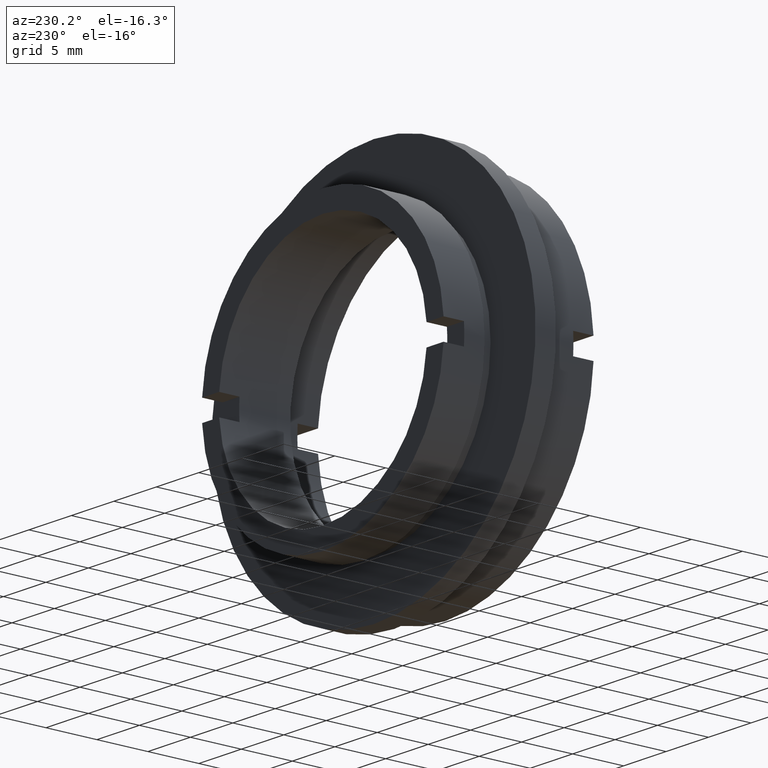
[diagram: clean part render]
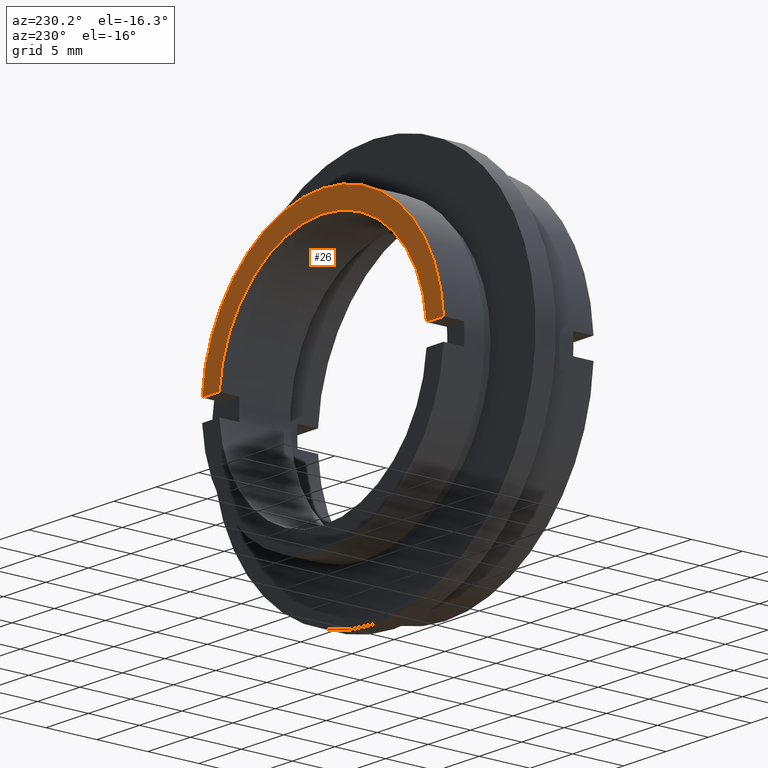
[diagram: same view with one face highlighted and labeled with its STEP entity id]
A machine part, auxiliary view. The second image highlights one B-rep face of the part: STEP entity #26.
In plain terms, the highlighted planar face has unit normal (-0, 1, 0).
Its self-contained STEP definition (entity closure, byte-faithful):
#26 = ADVANCED_FACE ( 'NONE', ( #1232 ), #1334, .T. ) ;
#49 = ORIENTED_EDGE ( 'NONE', *, *, #1216, .F. ) ;
#61 = CARTESIAN_POINT ( 'NONE',  ( 0.0000000000000000000, 12.00000000000000000, 0.0000000000000000000 ) ) ;
#62 = VECTOR ( 'NONE', #284, 1000.000000000000000 ) ;
#65 = LINE ( 'NONE', #1159, #62 ) ;
#67 = DIRECTION ( 'NONE',  ( -0.0000000000000000000, 1.000000000000000000, -0.0000000000000000000 ) ) ;
#74 = DIRECTION ( 'NONE',  ( 0.0000000000000000000, 0.0000000000000000000, 1.000000000000000000 ) ) ;
#96 = CIRCLE ( 'NONE', #985, 12.24999999999999800 ) ;
#106 = VECTOR ( 'NONE', #1008, 1000.000000000000000 ) ;
#165 = CARTESIAN_POINT ( 'NONE',  ( 0.0000000000000000000, 12.00000000000000000, 0.0000000000000000000 ) ) ;
#166 = DIRECTION ( 'NONE',  ( 0.0000000000000000000, 0.0000000000000000000, 1.000000000000000000 ) ) ;
#209 = LINE ( 'NONE', #1074, #106 ) ;
#232 = CARTESIAN_POINT ( 'NONE',  ( -12.20911544707477800, 12.00000000000000000, 1.000000000000001600 ) ) ;
#236 = CARTESIAN_POINT ( 'NONE',  ( 0.0000000000000000000, 12.00000000000000000, 0.0000000000000000000 ) ) ;
#239 = EDGE_CURVE ( 'NONE', #860, #384, #895, .T. ) ;
#262 = ORIENTED_EDGE ( 'NONE', *, *, #287, .T. ) ;
#284 = DIRECTION ( 'NONE',  ( 1.000000000000000000, 0.0000000000000000000, 0.0000000000000000000 ) ) ;
#287 = EDGE_CURVE ( 'NONE', #384, #1220, #1227, .T. ) ;
#335 = VERTEX_POINT ( 'NONE', #232 ) ;
#379 = ORIENTED_EDGE ( 'NONE', *, *, #851, .F. ) ;
#384 = VERTEX_POINT ( 'NONE', #1069 ) ;
#454 = CARTESIAN_POINT ( 'NONE',  ( 0.0000000000000000000, 12.00000000000000000, 12.24999999999999800 ) ) ;
#504 = AXIS2_PLACEMENT_3D ( 'NONE', #1294, #1097, #849 ) ;
#512 = DIRECTION ( 'NONE',  ( -0.0000000000000000000, 1.000000000000000000, -0.0000000000000000000 ) ) ;
#551 = CARTESIAN_POINT ( 'NONE',  ( 12.20911544707477800, 12.00000000000000000, 1.000000000000001600 ) ) ;
#582 = CARTESIAN_POINT ( 'NONE',  ( -14.21486897582949800, 12.00000000000000000, 1.000000000000001600 ) ) ;
#587 = ORIENTED_EDGE ( 'NONE', *, *, #758, .F. ) ;
#662 = DIRECTION ( 'NONE',  ( 0.0000000000000000000, 0.0000000000000000000, 1.000000000000000000 ) ) ;
#683 = AXIS2_PLACEMENT_3D ( 'NONE', #1277, #1309, #1151 ) ;
#758 = EDGE_CURVE ( 'NONE', #335, #814, #96, .T. ) ;
#798 = EDGE_LOOP ( 'NONE', ( #379, #876, #262, #49, #912, #587 ) ) ;
#814 = VERTEX_POINT ( 'NONE', #454 ) ;
#839 = AXIS2_PLACEMENT_3D ( 'NONE', #236, #512, #166 ) ;
#849 = DIRECTION ( 'NONE',  ( 0.0000000000000000000, 0.0000000000000000000, 1.000000000000000000 ) ) ;
#851 = EDGE_CURVE ( 'NONE', #860, #335, #65, .T. ) ;
#858 = EDGE_CURVE ( 'NONE', #814, #930, #1157, .T. ) ;
#860 = VERTEX_POINT ( 'NONE', #582 ) ;
#876 = ORIENTED_EDGE ( 'NONE', *, *, #239, .T. ) ;
#895 = CIRCLE ( 'NONE', #839, 14.24999999999999800 ) ;
#912 = ORIENTED_EDGE ( 'NONE', *, *, #858, .F. ) ;
#930 = VERTEX_POINT ( 'NONE', #551 ) ;
#985 = AXIS2_PLACEMENT_3D ( 'NONE', #61, #67, #74 ) ;
#996 = DIRECTION ( 'NONE',  ( -0.0000000000000000000, 1.000000000000000000, -0.0000000000000000000 ) ) ;
#1008 = DIRECTION ( 'NONE',  ( 1.000000000000000000, 0.0000000000000000000, 0.0000000000000000000 ) ) ;
#1032 = CARTESIAN_POINT ( 'NONE',  ( 14.21486897582949800, 12.00000000000000000, 1.000000000000001600 ) ) ;
#1069 = CARTESIAN_POINT ( 'NONE',  ( 0.0000000000000000000, 12.00000000000000000, 14.24999999999999800 ) ) ;
#1074 = CARTESIAN_POINT ( 'NONE',  ( -12.24999999999999800, 12.00000000000000000, 1.000000000000001600 ) ) ;
#1097 = DIRECTION ( 'NONE',  ( -0.0000000000000000000, 1.000000000000000000, 0.0000000000000000000 ) ) ;
#1151 = DIRECTION ( 'NONE',  ( 0.0000000000000000000, 0.0000000000000000000, 1.000000000000000000 ) ) ;
#1157 = CIRCLE ( 'NONE', #1188, 12.24999999999999800 ) ;
#1159 = CARTESIAN_POINT ( 'NONE',  ( -12.24999999999999800, 12.00000000000000000, 1.000000000000001600 ) ) ;
#1188 = AXIS2_PLACEMENT_3D ( 'NONE', #165, #996, #662 ) ;
#1216 = EDGE_CURVE ( 'NONE', #930, #1220, #209, .T. ) ;
#1220 = VERTEX_POINT ( 'NONE', #1032 ) ;
#1227 = CIRCLE ( 'NONE', #683, 14.24999999999999800 ) ;
#1232 = FACE_OUTER_BOUND ( 'NONE', #798, .T. ) ;
#1277 = CARTESIAN_POINT ( 'NONE',  ( 0.0000000000000000000, 12.00000000000000000, 0.0000000000000000000 ) ) ;
#1294 = CARTESIAN_POINT ( 'NONE',  ( -12.24999999999999800, 12.00000000000000000, 0.0000000000000000000 ) ) ;
#1309 = DIRECTION ( 'NONE',  ( -0.0000000000000000000, 1.000000000000000000, -0.0000000000000000000 ) ) ;
#1334 = PLANE ( 'NONE',  #504 ) ;